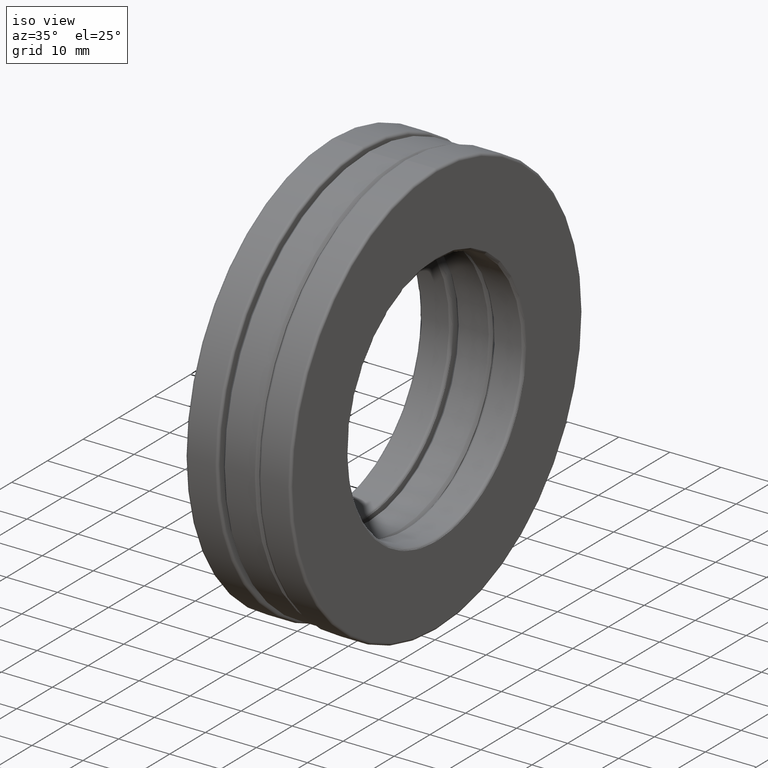
[diagram: clean part render]
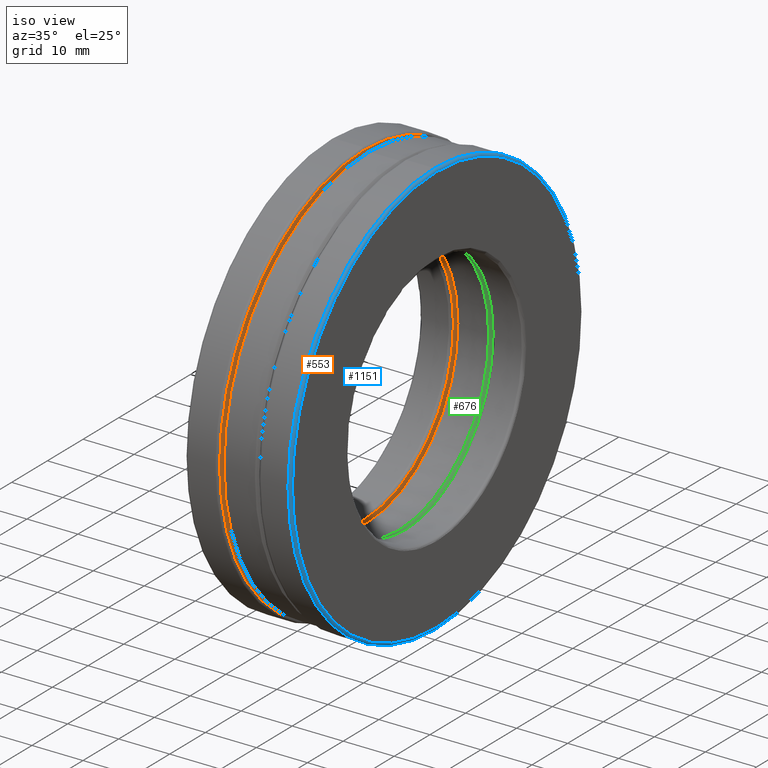
[diagram: same view with three faces highlighted in distinct colors, each labeled with its STEP entity id]
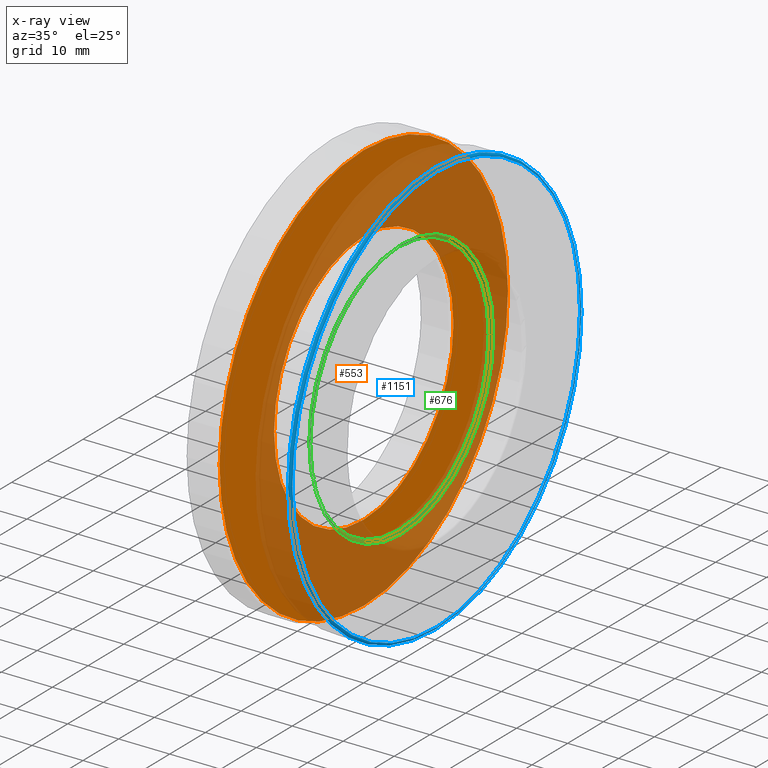
[diagram: x-ray of the same camera — body ghosted, the three highlighted faces saturated]
A machine part, iso view with three faces highlighted in distinct colors.
The next image is the same camera in x-ray (body ghosted, the three faces saturated) — at least one of them is partly hidden behind the body in this view.
Their STEP definitions:

[orange] entity #553 — the highlighted planar face has unit normal (1, 0, 0).
#26 = CARTESIAN_POINT ( 'NONE',  ( -0.1559999999999999400, 0.0000000000000000000, 1.589375000000000900 ) ) ;
#92 = ORIENTED_EDGE ( 'NONE', *, *, #613, .T. ) ;
#166 = ORIENTED_EDGE ( 'NONE', *, *, #1323, .F. ) ;
#243 = AXIS2_PLACEMENT_3D ( 'NONE', #333, #325, #1124 ) ;
#287 = PLANE ( 'NONE',  #1193 ) ;
#299 = CARTESIAN_POINT ( 'NONE',  ( -0.1559999999999999200, -8.869267159451072900E-018, 0.0000000000000000000 ) ) ;
#317 = DIRECTION ( 'NONE',  ( 0.0000000000000000000, 0.0000000000000000000, 1.000000000000000000 ) ) ;
#325 = DIRECTION ( 'NONE',  ( -1.000000000000000000, -0.0000000000000000000, -0.0000000000000000000 ) ) ;
#333 = CARTESIAN_POINT ( 'NONE',  ( -0.1559999999999999400, 0.0000000000000000000, 0.0000000000000000000 ) ) ;
#455 = CARTESIAN_POINT ( 'NONE',  ( -0.1559999999999999200, 0.0000000000000000000, 0.9887500000000001300 ) ) ;
#494 = EDGE_LOOP ( 'NONE', ( #92 ) ) ;
#509 = DIRECTION ( 'NONE',  ( 0.0000000000000000000, 0.0000000000000000000, -1.000000000000000000 ) ) ;
#530 = FACE_BOUND ( 'NONE', #494, .T. ) ;
#553 = ADVANCED_FACE ( 'NONE', ( #530, #1356 ), #287, .T. ) ;
#585 = AXIS2_PLACEMENT_3D ( 'NONE', #865, #875, #317 ) ;
#613 = EDGE_CURVE ( 'NONE', #1241, #1241, #1217, .T. ) ;
#715 = VERTEX_POINT ( 'NONE', #26 ) ;
#865 = CARTESIAN_POINT ( 'NONE',  ( -0.1559999999999999200, 0.0000000000000000000, 0.0000000000000000000 ) ) ;
#875 = DIRECTION ( 'NONE',  ( -1.000000000000000000, -0.0000000000000000000, -0.0000000000000000000 ) ) ;
#985 = DIRECTION ( 'NONE',  ( 1.000000000000000000, 0.0000000000000000000, 0.0000000000000000000 ) ) ;
#1005 = EDGE_LOOP ( 'NONE', ( #166 ) ) ;
#1124 = DIRECTION ( 'NONE',  ( 0.0000000000000000000, 0.0000000000000000000, 1.000000000000000000 ) ) ;
#1193 = AXIS2_PLACEMENT_3D ( 'NONE', #299, #985, #509 ) ;
#1217 = CIRCLE ( 'NONE', #585, 0.9887500000000001300 ) ;
#1241 = VERTEX_POINT ( 'NONE', #455 ) ;
#1244 = CIRCLE ( 'NONE', #243, 1.589375000000000900 ) ;
#1323 = EDGE_CURVE ( 'NONE', #715, #715, #1244, .T. ) ;
#1356 = FACE_OUTER_BOUND ( 'NONE', #1005, .T. ) ;

[blue] entity #1151 — the highlighted toroidal blend (fillet) surface has major radius 40.3701 mm and minor (blend) radius 0.508 mm.
#6 = CARTESIAN_POINT ( 'NONE',  ( 0.4060000000000001400, 0.0000000000000000000, 1.589375000000000900 ) ) ;
#66 = DIRECTION ( 'NONE',  ( 0.0000000000000000000, 0.0000000000000000000, 1.000000000000000000 ) ) ;
#119 = EDGE_LOOP ( 'NONE', ( #217 ) ) ;
#157 = AXIS2_PLACEMENT_3D ( 'NONE', #883, #977, #1194 ) ;
#200 = ORIENTED_EDGE ( 'NONE', *, *, #201, .T. ) ;
#201 = EDGE_CURVE ( 'NONE', #429, #429, #1237, .T. ) ;
#217 = ORIENTED_EDGE ( 'NONE', *, *, #361, .F. ) ;
#361 = EDGE_CURVE ( 'NONE', #1209, #1209, #1429, .T. ) ;
#386 = CARTESIAN_POINT ( 'NONE',  ( 0.4060000000000001400, 0.0000000000000000000, 0.0000000000000000000 ) ) ;
#429 = VERTEX_POINT ( 'NONE', #6 ) ;
#517 = DIRECTION ( 'NONE',  ( -1.000000000000000000, -0.0000000000000000000, -0.0000000000000000000 ) ) ;
#669 = FACE_OUTER_BOUND ( 'NONE', #973, .T. ) ;
#767 = CARTESIAN_POINT ( 'NONE',  ( 0.3860000000000004500, 0.0000000000000000000, 0.0000000000000000000 ) ) ;
#872 = TOROIDAL_SURFACE ( 'NONE', #1355, 1.589375000000000900, 0.01999999999999958100 ) ;
#883 = CARTESIAN_POINT ( 'NONE',  ( 0.3860000000000004500, 0.0000000000000000000, 0.0000000000000000000 ) ) ;
#973 = EDGE_LOOP ( 'NONE', ( #200 ) ) ;
#977 = DIRECTION ( 'NONE',  ( -1.000000000000000000, -0.0000000000000000000, -0.0000000000000000000 ) ) ;
#1024 = AXIS2_PLACEMENT_3D ( 'NONE', #386, #1282, #66 ) ;
#1151 = ADVANCED_FACE ( 'NONE', ( #1351, #669 ), #872, .T. ) ;
#1194 = DIRECTION ( 'NONE',  ( 0.0000000000000000000, 0.0000000000000000000, 1.000000000000000000 ) ) ;
#1209 = VERTEX_POINT ( 'NONE', #1360 ) ;
#1237 = CIRCLE ( 'NONE', #1024, 1.589375000000000900 ) ;
#1282 = DIRECTION ( 'NONE',  ( -1.000000000000000000, -0.0000000000000000000, -0.0000000000000000000 ) ) ;
#1351 = FACE_OUTER_BOUND ( 'NONE', #119, .T. ) ;
#1355 = AXIS2_PLACEMENT_3D ( 'NONE', #767, #517, #1421 ) ;
#1360 = CARTESIAN_POINT ( 'NONE',  ( 0.3860000000000004500, 0.0000000000000000000, 1.609375000000000400 ) ) ;
#1421 = DIRECTION ( 'NONE',  ( 0.0000000000000000000, 0.0000000000000000000, 1.000000000000000000 ) ) ;
#1429 = CIRCLE ( 'NONE', #157, 1.609375000000000400 ) ;

[green] entity #676 — the highlighted conical surface has half-angle 45 deg.
#75 = VERTEX_POINT ( 'NONE', #816 ) ;
#97 = VERTEX_POINT ( 'NONE', #353 ) ;
#149 = DIRECTION ( 'NONE',  ( -1.000000000000000000, -0.0000000000000000000, -0.0000000000000000000 ) ) ;
#162 = EDGE_LOOP ( 'NONE', ( #1310 ) ) ;
#167 = DIRECTION ( 'NONE',  ( 0.0000000000000000000, 0.0000000000000000000, 1.000000000000000000 ) ) ;
#170 = ORIENTED_EDGE ( 'NONE', *, *, #815, .T. ) ;
#198 = CARTESIAN_POINT ( 'NONE',  ( 0.1360000000000000700, 0.0000000000000000000, 0.0000000000000000000 ) ) ;
#262 = FACE_OUTER_BOUND ( 'NONE', #162, .T. ) ;
#294 = EDGE_CURVE ( 'NONE', #75, #75, #856, .T. ) ;
#304 = DIRECTION ( 'NONE',  ( 0.0000000000000000000, 0.0000000000000000000, 1.000000000000000000 ) ) ;
#353 = CARTESIAN_POINT ( 'NONE',  ( 0.1160000000000000800, 0.0000000000000000000, 0.9887500000000001300 ) ) ;
#539 = DIRECTION ( 'NONE',  ( 0.0000000000000000000, 0.0000000000000000000, -1.000000000000000000 ) ) ;
#558 = AXIS2_PLACEMENT_3D ( 'NONE', #753, #989, #304 ) ;
#612 = EDGE_LOOP ( 'NONE', ( #170 ) ) ;
#616 = CONICAL_SURFACE ( 'NONE', #1002, 1.008750000000000000, 0.7853981633974500600 ) ;
#676 = ADVANCED_FACE ( 'NONE', ( #1467, #262 ), #616, .F. ) ;
#753 = CARTESIAN_POINT ( 'NONE',  ( 0.1360000000000000700, 0.0000000000000000000, 0.0000000000000000000 ) ) ;
#815 = EDGE_CURVE ( 'NONE', #97, #97, #1167, .T. ) ;
#816 = CARTESIAN_POINT ( 'NONE',  ( 0.1360000000000000700, 0.0000000000000000000, 1.008750000000000000 ) ) ;
#856 = CIRCLE ( 'NONE', #558, 1.008750000000000000 ) ;
#857 = CARTESIAN_POINT ( 'NONE',  ( 0.1160000000000000800, 0.0000000000000000000, 0.0000000000000000000 ) ) ;
#989 = DIRECTION ( 'NONE',  ( -1.000000000000000000, -0.0000000000000000000, -0.0000000000000000000 ) ) ;
#1002 = AXIS2_PLACEMENT_3D ( 'NONE', #198, #1451, #539 ) ;
#1167 = CIRCLE ( 'NONE', #1227, 0.9887500000000001300 ) ;
#1227 = AXIS2_PLACEMENT_3D ( 'NONE', #857, #149, #167 ) ;
#1310 = ORIENTED_EDGE ( 'NONE', *, *, #294, .F. ) ;
#1451 = DIRECTION ( 'NONE',  ( 1.000000000000000000, 0.0000000000000000000, 0.0000000000000000000 ) ) ;
#1467 = FACE_BOUND ( 'NONE', #612, .T. ) ;